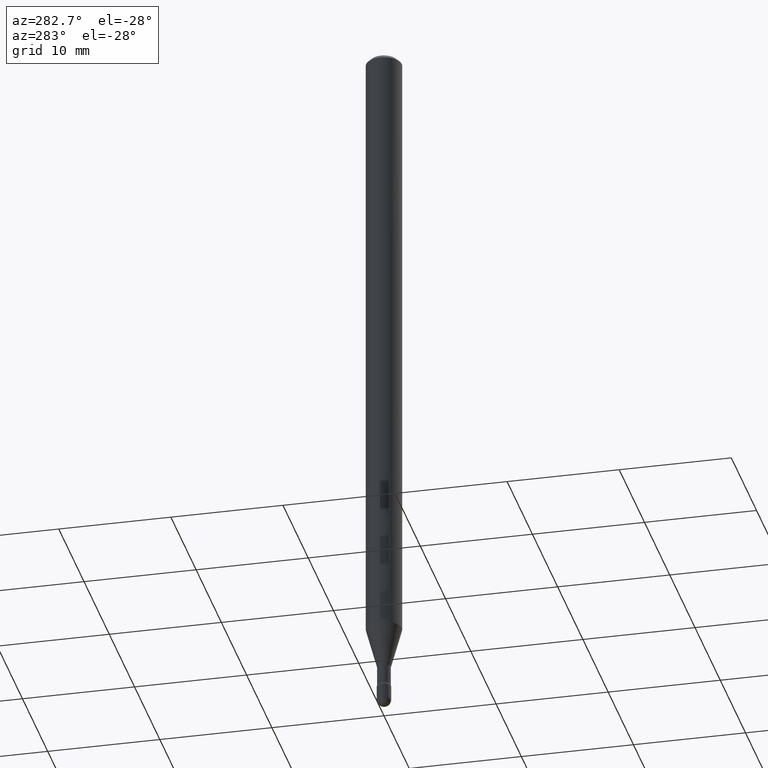
[diagram: clean part render]
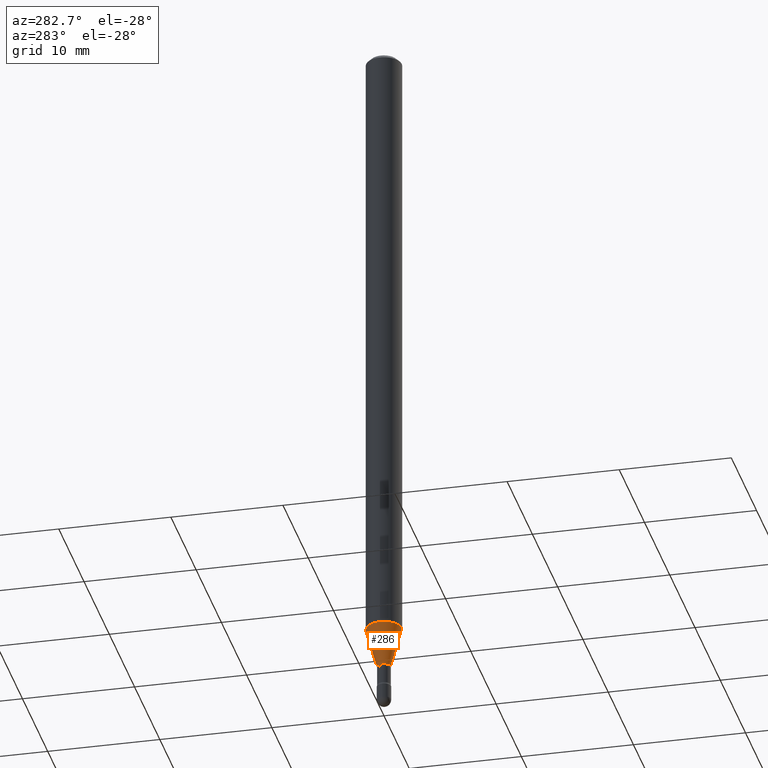
[diagram: same view with one face highlighted and labeled with its STEP entity id]
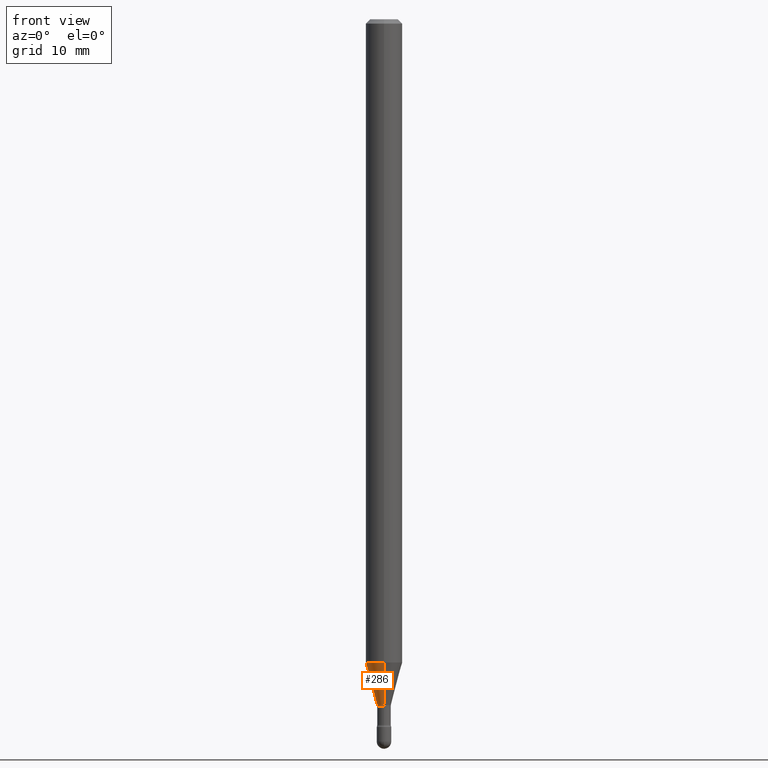
[diagram: same view with one face highlighted and labeled with its STEP entity id]
A machine part, auxiliary view. The second image highlights one B-rep face of the part: STEP entity #286.
A second angle (front view) of the same face is appended — the face is thin or edge-on in the first view.
In plain terms, the highlighted conical surface has half-angle 15 deg.
Its self-contained STEP definition (entity closure, byte-faithful):
#1 = DIRECTION ( 'NONE',  ( -2.445458152833989696E-29, 3.491496595048338889E-15, 1.000000000000000000 ) ) ;
#2 = VERTEX_POINT ( 'NONE', #441 ) ;
#5 = CARTESIAN_POINT ( 'NONE',  ( -1.676687031750163775E-16, -0.02401111260567218020, -2.348092501787273356 ) ) ;
#42 = EDGE_CURVE ( 'NONE', #532, #521, #501, .T. ) ;
#45 = DIRECTION ( 'NONE',  ( -6.982962677686265133E-15, -1.000000000000000000, 0.000000000000000000 ) ) ;
#50 = DIRECTION ( 'NONE',  ( -1.807323732225330928E-15, -0.2588190451025182970, 0.9659258262890689783 ) ) ;
#53 = LINE ( 'NONE', #5, #159 ) ;
#85 = DIRECTION ( 'NONE',  ( -2.445458152833989696E-29, 3.491496595048338889E-15, 1.000000000000000000 ) ) ;
#93 = EDGE_LOOP ( 'NONE', ( #265, #95, #378, #322 ) ) ;
#94 = DIRECTION ( 'NONE',  ( -2.445458152833989696E-29, 3.491496595048338889E-15, 1.000000000000000000 ) ) ;
#95 = ORIENTED_EDGE ( 'NONE', *, *, #147, .T. ) ;
#102 = DIRECTION ( 'NONE',  ( -6.982962677686265922E-15, -1.000000000000000000, 4.370956789862821150E-15 ) ) ;
#134 = CARTESIAN_POINT ( 'NONE',  ( 5.390890270267638833E-29, -7.696829733563806270E-15, -2.204450018504814590 ) ) ;
#147 = EDGE_CURVE ( 'NONE', #532, #403, #468, .T. ) ;
#148 = FACE_OUTER_BOUND ( 'NONE', #93, .T. ) ;
#159 = VECTOR ( 'NONE', #50, 39.37007874015748143 ) ;
#171 = AXIS2_PLACEMENT_3D ( 'NONE', #220, #94, #45 ) ;
#177 = DIRECTION ( 'NONE',  ( 1.839019923739601104E-15, 0.2588190451025250693, 0.9659258262890670910 ) ) ;
#178 = CONICAL_SURFACE ( 'NONE', #554, 0.02401111260566398189, 0.2617993877991502960 ) ;
#182 = DIRECTION ( 'NONE',  ( -6.982962677686265133E-15, -1.000000000000000000, 0.000000000000000000 ) ) ;
#220 = CARTESIAN_POINT ( 'NONE',  ( 5.742161952104046724E-29, -8.198356974848799736E-15, -2.348092501787273356 ) ) ;
#228 = EDGE_CURVE ( 'NONE', #403, #2, #53, .T. ) ;
#265 = ORIENTED_EDGE ( 'NONE', *, *, #42, .F. ) ;
#271 = AXIS2_PLACEMENT_3D ( 'NONE', #134, #85, #102 ) ;
#286 = ADVANCED_FACE ( 'NONE', ( #148 ), #178, .T. ) ;
#296 = CARTESIAN_POINT ( 'NONE',  ( 1.706092163947804984E-16, 0.02401111260565578012, -2.348092501787273356 ) ) ;
#319 = CIRCLE ( 'NONE', #271, 0.06250000000000000000 ) ;
#322 = ORIENTED_EDGE ( 'NONE', *, *, #414, .F. ) ;
#333 = CARTESIAN_POINT ( 'NONE',  ( -1.676687031750163775E-16, -0.02401111260567218020, -2.348092501787273356 ) ) ;
#366 = CARTESIAN_POINT ( 'NONE',  ( 3.073492131224485758E-16, 0.02401111260565577665, -2.348092501787273356 ) ) ;
#378 = ORIENTED_EDGE ( 'NONE', *, *, #228, .T. ) ;
#403 = VERTEX_POINT ( 'NONE', #333 ) ;
#414 = EDGE_CURVE ( 'NONE', #521, #2, #319, .T. ) ;
#441 = CARTESIAN_POINT ( 'NONE',  ( -4.364351673553378297E-16, -0.06250000000000771605, -2.204450018504814146 ) ) ;
#468 = CIRCLE ( 'NONE', #171, 0.02401111260566398189 ) ;
#501 = LINE ( 'NONE', #296, #506 ) ;
#506 = VECTOR ( 'NONE', #177, 39.37007874015748143 ) ;
#521 = VERTEX_POINT ( 'NONE', #536 ) ;
#532 = VERTEX_POINT ( 'NONE', #366 ) ;
#536 = CARTESIAN_POINT ( 'NONE',  ( 4.440892098501162587E-16, 0.06249999999999227007, -2.204450018504814590 ) ) ;
#554 = AXIS2_PLACEMENT_3D ( 'NONE', #565, #1, #182 ) ;
#565 = CARTESIAN_POINT ( 'NONE',  ( 5.742161952104046724E-29, -8.198356974848799736E-15, -2.348092501787273356 ) ) ;